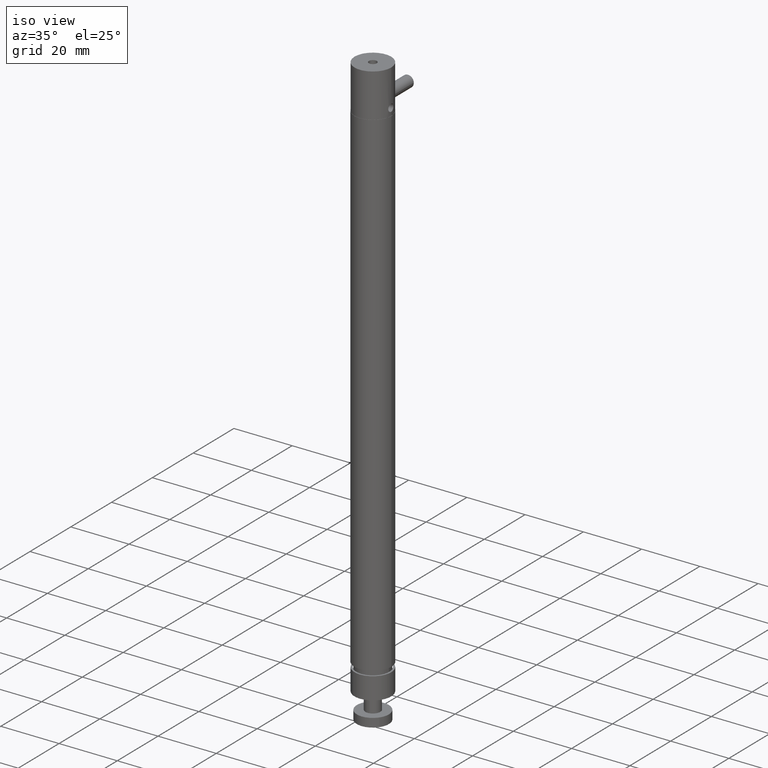
[diagram: clean part render]
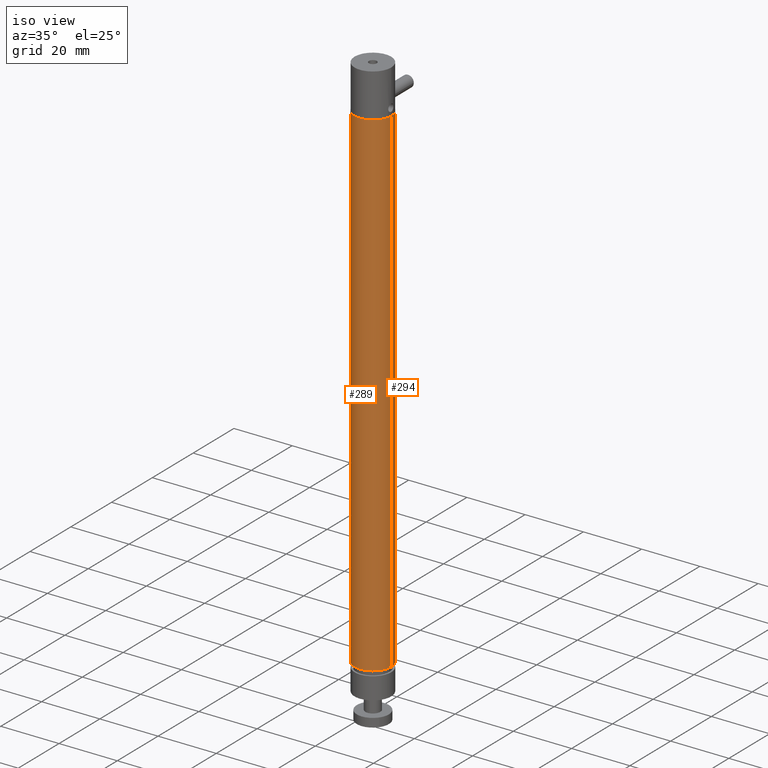
[diagram: same view with one multi-face feature highlighted, each face labeled with its STEP entity id]
A machine part, iso view. The highlighted faces form ONE feature: a constant-radius fillet chain: 2 tangent blend faces with common blend radius 6.35 mm. The faces share edges in the B-rep.
Their STEP definitions:
[1] entity #294 (Cylinder):
#8 = EDGE_CURVE ( 'NONE', #298, #305, #406, .T. ) ;
#9 = ORIENTED_EDGE ( 'NONE', *, *, #8, .F. ) ;
#294 = ADVANCED_FACE ( 'NONE', ( #1493 ), #1524, .T. ) ;
#295 = EDGE_LOOP ( 'NONE', ( #296, #300, #303, #9 ) ) ;
#296 = ORIENTED_EDGE ( 'NONE', *, *, #297, .T. ) ;
#297 = EDGE_CURVE ( 'NONE', #298, #299, #1520, .T. ) ;
#298 = VERTEX_POINT ( 'NONE', #1516 ) ;
#299 = VERTEX_POINT ( 'NONE', #1515 ) ;
#300 = ORIENTED_EDGE ( 'NONE', *, *, #301, .T. ) ;
#301 = EDGE_CURVE ( 'NONE', #299, #302, #1514, .T. ) ;
#302 = VERTEX_POINT ( 'NONE', #1510 ) ;
#303 = ORIENTED_EDGE ( 'NONE', *, *, #304, .F. ) ;
#304 = EDGE_CURVE ( 'NONE', #305, #302, #1561, .T. ) ;
#305 = VERTEX_POINT ( 'NONE', #1556 ) ;
#403 = DIRECTION ( 'NONE',  ( -2.070759876205156000E-030, 4.437342591868191400E-031, 1.000000000000000000 ) ) ;
#404 = VECTOR ( 'NONE', #403, 39.37007874015748100 ) ;
#405 = CARTESIAN_POINT ( 'NONE',  ( -1.053146961860185000, -1.638825475584404700, -5.847566235150881500 ) ) ;
#406 = LINE ( 'NONE', #405, #404 ) ;
#1493 = FACE_OUTER_BOUND ( 'NONE', #295, .T. ) ;
#1510 = CARTESIAN_POINT ( 'NONE',  ( -1.553146961860181000, -1.638825475584404900, 1.061882583746756700 ) ) ;
#1511 = DIRECTION ( 'NONE',  ( -2.070759876205156000E-030, 4.437342591868191400E-031, 1.000000000000000000 ) ) ;
#1512 = VECTOR ( 'NONE', #1511, 39.37007874015748100 ) ;
#1513 = CARTESIAN_POINT ( 'NONE',  ( -1.553146961860190100, -1.638825475584404900, -5.847566235150881500 ) ) ;
#1514 = LINE ( 'NONE', #1513, #1512 ) ;
#1515 = CARTESIAN_POINT ( 'NONE',  ( -1.553146961860187600, -1.638825475584404900, -5.670400880820172200 ) ) ;
#1516 = CARTESIAN_POINT ( 'NONE',  ( -1.053146961860187400, -1.638825475584404700, -5.670400880820172200 ) ) ;
#1517 = DIRECTION ( 'NONE',  ( -1.000000000000000000, -1.092739197465694400E-015, 0.0000000000000000000 ) ) ;
#1518 = DIRECTION ( 'NONE',  ( -2.267975102510409300E-030, 3.451266460341927500E-031, 1.000000000000000000 ) ) ;
#1519 = AXIS2_PLACEMENT_3D ( 'NONE', #1525, #1518, #1517 ) ;
#1520 = CIRCLE ( 'NONE', #1519, 0.2500000000000025000 ) ;
#1521 = DIRECTION ( 'NONE',  ( 1.000000000000000000, 1.092739197465693700E-015, 0.0000000000000000000 ) ) ;
#1522 = DIRECTION ( 'NONE',  ( -2.070759876205156000E-030, 4.437342591868191400E-031, 1.000000000000000000 ) ) ;
#1523 = AXIS2_PLACEMENT_3D ( 'NONE', #1526, #1522, #1521 ) ;
#1524 = CYLINDRICAL_SURFACE ( 'NONE', #1523, 0.2500000000000026600 ) ;
#1525 = CARTESIAN_POINT ( 'NONE',  ( -1.303146961860187600, -1.638825475584408500, -5.670400880820172200 ) ) ;
#1526 = CARTESIAN_POINT ( 'NONE',  ( -1.303146961860187600, -1.638825475584404900, -5.847566235150881500 ) ) ;
#1556 = CARTESIAN_POINT ( 'NONE',  ( -1.053146961860178300, -1.638825475584403400, 1.061882583746756700 ) ) ;
#1557 = DIRECTION ( 'NONE',  ( 1.000000000000000000, 1.092739197465693700E-015, 0.0000000000000000000 ) ) ;
#1558 = DIRECTION ( 'NONE',  ( -2.070759876205156000E-030, 4.437342591868191400E-031, 1.000000000000000000 ) ) ;
#1559 = CARTESIAN_POINT ( 'NONE',  ( -1.303146961860181000, -1.638825475584403600, 1.061882583746756700 ) ) ;
#1560 = AXIS2_PLACEMENT_3D ( 'NONE', #1559, #1558, #1557 ) ;
#1561 = CIRCLE ( 'NONE', #1560, 0.2500000000000026600 ) ;
[2] entity #289 (Cylinder):
#8 = EDGE_CURVE ( 'NONE', #298, #305, #406, .T. ) ;
#15 = ORIENTED_EDGE ( 'NONE', *, *, #288, .F. ) ;
#16 = ORIENTED_EDGE ( 'NONE', *, *, #301, .F. ) ;
#18 = ORIENTED_EDGE ( 'NONE', *, *, #8, .T. ) ;
#19 = ORIENTED_EDGE ( 'NONE', *, *, #20, .T. ) ;
#20 = EDGE_CURVE ( 'NONE', #299, #298, #435, .T. ) ;
#288 = EDGE_CURVE ( 'NONE', #302, #305, #1462, .T. ) ;
#289 = ADVANCED_FACE ( 'NONE', ( #1458 ), #1503, .T. ) ;
#290 = EDGE_LOOP ( 'NONE', ( #16, #19, #18, #15 ) ) ;
#298 = VERTEX_POINT ( 'NONE', #1516 ) ;
#299 = VERTEX_POINT ( 'NONE', #1515 ) ;
#301 = EDGE_CURVE ( 'NONE', #299, #302, #1514, .T. ) ;
#302 = VERTEX_POINT ( 'NONE', #1510 ) ;
#305 = VERTEX_POINT ( 'NONE', #1556 ) ;
#403 = DIRECTION ( 'NONE',  ( -2.070759876205156000E-030, 4.437342591868191400E-031, 1.000000000000000000 ) ) ;
#404 = VECTOR ( 'NONE', #403, 39.37007874015748100 ) ;
#405 = CARTESIAN_POINT ( 'NONE',  ( -1.053146961860185000, -1.638825475584404700, -5.847566235150881500 ) ) ;
#406 = LINE ( 'NONE', #405, #404 ) ;
#431 = DIRECTION ( 'NONE',  ( -1.000000000000000000, -1.092739197465694400E-015, 0.0000000000000000000 ) ) ;
#432 = DIRECTION ( 'NONE',  ( -2.267975102510409300E-030, 3.451266460341927500E-031, 1.000000000000000000 ) ) ;
#433 = CARTESIAN_POINT ( 'NONE',  ( -1.303146961860187600, -1.638825475584408500, -5.670400880820172200 ) ) ;
#434 = AXIS2_PLACEMENT_3D ( 'NONE', #433, #432, #431 ) ;
#435 = CIRCLE ( 'NONE', #434, 0.2500000000000025000 ) ;
#1458 = FACE_OUTER_BOUND ( 'NONE', #290, .T. ) ;
#1459 = DIRECTION ( 'NONE',  ( 1.000000000000000000, 1.092739197465693700E-015, 0.0000000000000000000 ) ) ;
#1460 = DIRECTION ( 'NONE',  ( -2.070759876205156000E-030, 4.437342591868191400E-031, 1.000000000000000000 ) ) ;
#1461 = AXIS2_PLACEMENT_3D ( 'NONE', #1469, #1460, #1459 ) ;
#1462 = CIRCLE ( 'NONE', #1461, 0.2500000000000026600 ) ;
#1469 = CARTESIAN_POINT ( 'NONE',  ( -1.303146961860181000, -1.638825475584403600, 1.061882583746756700 ) ) ;
#1500 = DIRECTION ( 'NONE',  ( 1.000000000000000000, 1.092739197465693700E-015, 0.0000000000000000000 ) ) ;
#1501 = DIRECTION ( 'NONE',  ( -2.070759876205156000E-030, 4.437342591868191400E-031, 1.000000000000000000 ) ) ;
#1502 = AXIS2_PLACEMENT_3D ( 'NONE', #1504, #1501, #1500 ) ;
#1503 = CYLINDRICAL_SURFACE ( 'NONE', #1502, 0.2500000000000026600 ) ;
#1504 = CARTESIAN_POINT ( 'NONE',  ( -1.303146961860187600, -1.638825475584404900, -5.847566235150881500 ) ) ;
#1510 = CARTESIAN_POINT ( 'NONE',  ( -1.553146961860181000, -1.638825475584404900, 1.061882583746756700 ) ) ;
#1511 = DIRECTION ( 'NONE',  ( -2.070759876205156000E-030, 4.437342591868191400E-031, 1.000000000000000000 ) ) ;
#1512 = VECTOR ( 'NONE', #1511, 39.37007874015748100 ) ;
#1513 = CARTESIAN_POINT ( 'NONE',  ( -1.553146961860190100, -1.638825475584404900, -5.847566235150881500 ) ) ;
#1514 = LINE ( 'NONE', #1513, #1512 ) ;
#1515 = CARTESIAN_POINT ( 'NONE',  ( -1.553146961860187600, -1.638825475584404900, -5.670400880820172200 ) ) ;
#1516 = CARTESIAN_POINT ( 'NONE',  ( -1.053146961860187400, -1.638825475584404700, -5.670400880820172200 ) ) ;
#1556 = CARTESIAN_POINT ( 'NONE',  ( -1.053146961860178300, -1.638825475584403400, 1.061882583746756700 ) ) ;